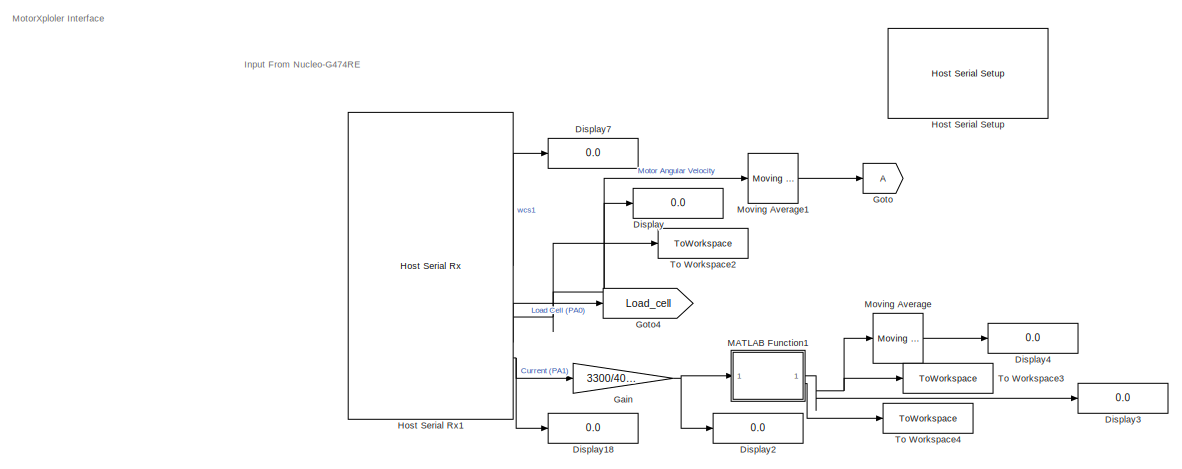
[diagram: root canvas - part 1/3, top left region]
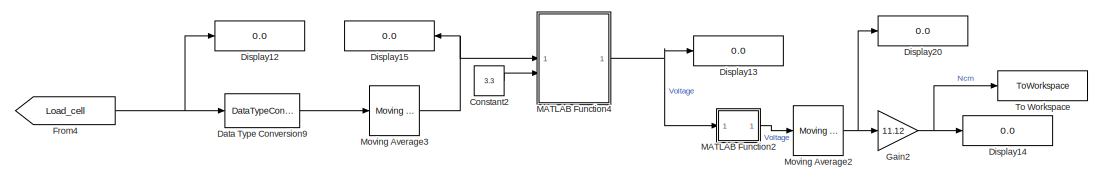
[diagram: root canvas - part 2/3, middle right region]
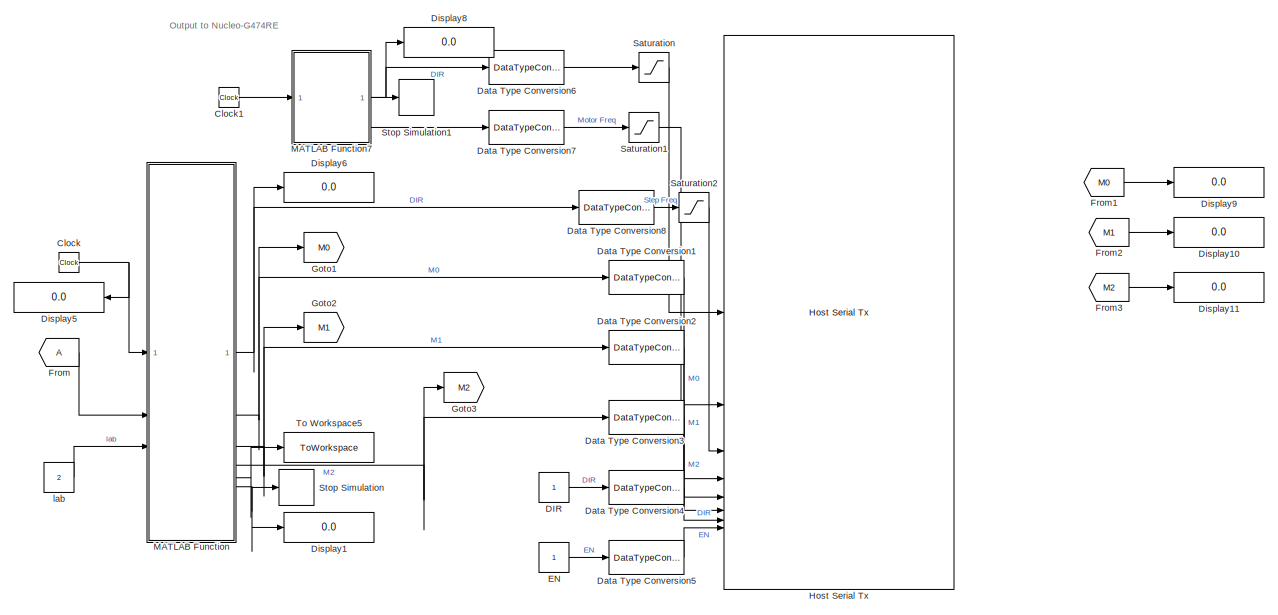
[diagram: root canvas - part 3/3, bottom left region]
MODEL slx_ba54eec96ae3
KIND model
CONFIG AbsTol = auto
CONFIG EnableMultiTasking = off
CONFIG FixedStep = 0.001
CONFIG MaxStep = auto
CONFIG MinStep = auto
CONFIG RelTol = 1e-3
CONFIG SampleTimeConstraint = Unconstrained
CONFIG SolverName = FixedStepAuto
CONFIG StartTime = 0.0
CONFIG StopTime = inf
BLOCK [Clock] Clock
BLOCK [Clock] Clock1
BLOCK [Constant] Constant2
  Value = 3.3
BLOCK [Constant] DIR
BLOCK [DataTypeConversion] Data Type Conversion1
  RndMeth = Floor
  SaturateOnIntegerOverflow = off
BLOCK [DataTypeConversion] Data Type Conversion2
  RndMeth = Floor
  SaturateOnIntegerOverflow = off
BLOCK [DataTypeConversion] Data Type Conversion3
  RndMeth = Floor
  SaturateOnIntegerOverflow = off
BLOCK [DataTypeConversion] Data Type Conversion4
  RndMeth = Floor
  SaturateOnIntegerOverflow = off
BLOCK [DataTypeConversion] Data Type Conversion5
  RndMeth = Floor
  SaturateOnIntegerOverflow = off
BLOCK [DataTypeConversion] Data Type Conversion6
  RndMeth = Floor
  SaturateOnIntegerOverflow = off
BLOCK [DataTypeConversion] Data Type Conversion7
  RndMeth = Floor
  SaturateOnIntegerOverflow = off
BLOCK [DataTypeConversion] Data Type Conversion8
  RndMeth = Floor
  SaturateOnIntegerOverflow = off
BLOCK [DataTypeConversion] Data Type Conversion9
  OutDataTypeStr = double
  RndMeth = Floor
  SaturateOnIntegerOverflow = off
BLOCK [Display] Display
  Decimation = 1
BLOCK [Display] Display1
  Decimation = 1
  Format = long
BLOCK [Display] Display10
  Decimation = 1
BLOCK [Display] Display11
  Decimation = 1
BLOCK [Display] Display12
  Decimation = 1
BLOCK [Display] Display13
  Decimation = 1
BLOCK [Display] Display14
  Decimation = 1
BLOCK [Display] Display15
  Decimation = 1
  NameLocation = top
BLOCK [Display] Display18
  Decimation = 1
BLOCK [Display] Display2
  Decimation = 1
BLOCK [Display] Display20
  Decimation = 1
BLOCK [Display] Display3
  Decimation = 1
BLOCK [Display] Display4
  Decimation = 1
BLOCK [Display] Display5
  Decimation = 1
  NameLocation = top
BLOCK [Display] Display6
  Decimation = 1
  Format = long
BLOCK [Display] Display7
  Decimation = 1
BLOCK [Display] Display8
  Decimation = 1
  Format = long
BLOCK [Display] Display9
  Decimation = 1
BLOCK [Constant] EN
BLOCK [From] From
BLOCK [From] From1
  GotoTag = M0
BLOCK [From] From2
  GotoTag = M1
BLOCK [From] From3
  GotoTag = M2
BLOCK [From] From4
  GotoTag = Load_cell
BLOCK [Gain] Gain
  Gain = 3300/4096
BLOCK [Gain] Gain2
  Gain = 11.12
BLOCK [Goto] Goto
BLOCK [Goto] Goto1
  GotoTag = M0
BLOCK [Goto] Goto2
  GotoTag = M1
BLOCK [Goto] Goto3
  GotoTag = M2
BLOCK [Goto] Goto4
  GotoTag = Load_cell
BLOCK [Reference] Host Serial Rx1  REF=amg_usbconverter_n_connect_lib/Host Serial Rx
  SourceBlock = amg_usbconverter_n_connect_lib/Host Serial Rx
  SourceProductName = aMG USB Converter N
  SourceType = amg_usbconverter_n_connect
BLOCK [Reference] Host Serial Setup  REF=amg_usbconverter_n_connect_lib/Host Serial Setup
  SourceBlock = amg_usbconverter_n_connect_lib/Host Serial Setup
  SourceProductName = aMG USB Converter N
  SourceType = amg_usbconverter_n_connect
BLOCK [Reference] Host Serial Tx  REF=amg_usbconverter_n_connect_lib/Host Serial Tx
  SourceBlock = amg_usbconverter_n_connect_lib/Host Serial Tx
  SourceProductName = aMG USB Converter N
  SourceType = amg_usbconverter_n_connect
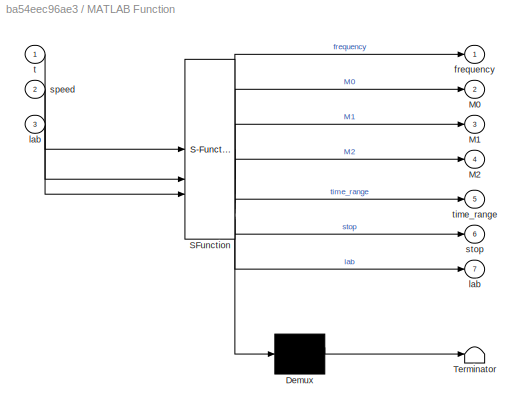
BLOCK [SubSystem] MATLAB Function
  ErrorFcn = Stateflow.Translate.translate
  PermitHierarchicalResolution = ExplicitOnly
  SFBlockType = MATLAB Function
  TreatAsAtomicUnit = on
BLOCK [Demux] MATLAB Function/ Demux 
  Outputs = 1
BLOCK [S-Function] MATLAB Function/ SFunction 
  EnableBusSupport = off
  FunctionName = sf_sfun
  PortCounts = [3 8]
  SFcnIsStateOwnerBlock = off
  SFunctionDeploymentMode = off
  Tag = Stateflow S-Function 2
BLOCK [Terminator] MATLAB Function/ Terminator 
BLOCK [Outport] MATLAB Function/M0
  Port = 2
BLOCK [Outport] MATLAB Function/M1
  Port = 3
BLOCK [Outport] MATLAB Function/M2
  Port = 4
BLOCK [Outport] MATLAB Function/frequency
BLOCK [Outport] MATLAB Function/lab
  Port = 7
BLOCK [Inport] MATLAB Function/lab 
  Port = 3
BLOCK [Inport] MATLAB Function/speed
  Port = 2
BLOCK [Outport] MATLAB Function/stop
  Port = 6
BLOCK [Inport] MATLAB Function/t
BLOCK [Outport] MATLAB Function/time_range
  Port = 5
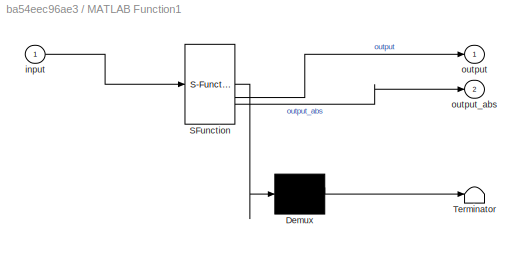
BLOCK [SubSystem] MATLAB Function1
  ErrorFcn = Stateflow.Translate.translate
  PermitHierarchicalResolution = ExplicitOnly
  SFBlockType = MATLAB Function
  TreatAsAtomicUnit = on
BLOCK [Demux] MATLAB Function1/ Demux 
  Outputs = 1
BLOCK [S-Function] MATLAB Function1/ SFunction 
  EnableBusSupport = off
  FunctionName = sf_sfun
  PortCounts = [1 3]
  SFcnIsStateOwnerBlock = off
  SFunctionDeploymentMode = off
  Tag = Stateflow S-Function 1
BLOCK [Terminator] MATLAB Function1/ Terminator 
BLOCK [Inport] MATLAB Function1/input
BLOCK [Outport] MATLAB Function1/output
BLOCK [Outport] MATLAB Function1/output_abs
  Port = 2
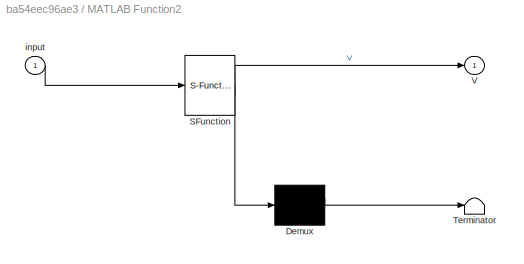
BLOCK [SubSystem] MATLAB Function2
  ErrorFcn = Stateflow.Translate.translate
  PermitHierarchicalResolution = ExplicitOnly
  SFBlockType = MATLAB Function
  TreatAsAtomicUnit = on
BLOCK [Demux] MATLAB Function2/ Demux 
  Outputs = 1
BLOCK [S-Function] MATLAB Function2/ SFunction 
  EnableBusSupport = off
  FunctionName = sf_sfun
  PortCounts = [1 2]
  SFcnIsStateOwnerBlock = off
  SFunctionDeploymentMode = off
  Tag = Stateflow S-Function 3
BLOCK [Terminator] MATLAB Function2/ Terminator 
BLOCK [Outport] MATLAB Function2/V
BLOCK [Inport] MATLAB Function2/input
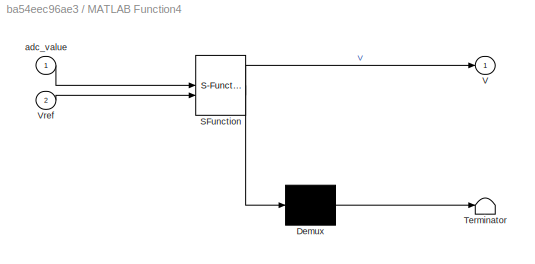
BLOCK [SubSystem] MATLAB Function4
  ErrorFcn = Stateflow.Translate.translate
  PermitHierarchicalResolution = ExplicitOnly
  SFBlockType = MATLAB Function
  TreatAsAtomicUnit = on
BLOCK [Demux] MATLAB Function4/ Demux 
  Outputs = 1
BLOCK [S-Function] MATLAB Function4/ SFunction 
  EnableBusSupport = off
  FunctionName = sf_sfun
  PortCounts = [2 2]
  SFcnIsStateOwnerBlock = off
  SFunctionDeploymentMode = off
  Tag = Stateflow S-Function 5
BLOCK [Terminator] MATLAB Function4/ Terminator 
BLOCK [Outport] MATLAB Function4/V
BLOCK [Inport] MATLAB Function4/Vref
  Port = 2
BLOCK [Inport] MATLAB Function4/adc_value
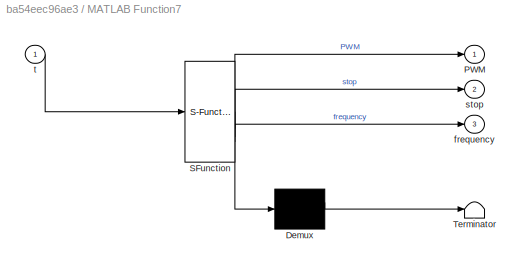
BLOCK [SubSystem] MATLAB Function7
  ErrorFcn = Stateflow.Translate.translate
  PermitHierarchicalResolution = ExplicitOnly
  SFBlockType = MATLAB Function
  TreatAsAtomicUnit = on
BLOCK [Demux] MATLAB Function7/ Demux 
  Outputs = 1
BLOCK [S-Function] MATLAB Function7/ SFunction 
  EnableBusSupport = off
  FunctionName = sf_sfun
  PortCounts = [1 4]
  SFcnIsStateOwnerBlock = off
  SFunctionDeploymentMode = off
  Tag = Stateflow S-Function 8
BLOCK [Terminator] MATLAB Function7/ Terminator 
BLOCK [Outport] MATLAB Function7/PWM
BLOCK [Outport] MATLAB Function7/frequency
  Port = 3
BLOCK [Outport] MATLAB Function7/stop
  Port = 2
BLOCK [Inport] MATLAB Function7/t
BLOCK [Reference] Moving Average  REF=dspstat3/Moving
Average
  SourceBlock = dspstat3/Moving\nAverage
  SourceType = dsp.simulink.MovingAverage
BLOCK [Reference] Moving Average1  REF=dspstat3/Moving
Average
  SourceBlock = dspstat3/Moving\nAverage
  SourceType = dsp.simulink.MovingAverage
BLOCK [Reference] Moving Average2  REF=dspstat3/Moving
Average
  SourceBlock = dspstat3/Moving\nAverage
  SourceType = dsp.simulink.MovingAverage
BLOCK [Reference] Moving Average3  REF=dspstat3/Moving
Average
  SourceBlock = dspstat3/Moving\nAverage
  SourceType = dsp.simulink.MovingAverage
BLOCK [Saturate] Saturation
  LowerLimit = -65535
  UpperLimit = 65535
BLOCK [Saturate] Saturation1
  LowerLimit = 0
  UpperLimit = 20000
BLOCK [Saturate] Saturation2
  LowerLimit = 0
  UpperLimit = inf
BLOCK [Stop] Stop Simulation
  Commented = on
BLOCK [Stop] Stop Simulation1
BLOCK [ToWorkspace] To Workspace
  FixptAsFi = on
  MaxDataPoints = inf
  SampleTime = -1
  SaveFormat = Structure With Time
  VariableName = simout1
BLOCK [ToWorkspace] To Workspace2
  FixptAsFi = on
  MaxDataPoints = inf
  SampleTime = -1
  SaveFormat = Structure With Time
  VariableName = simout2
BLOCK [ToWorkspace] To Workspace3
  FixptAsFi = on
  MaxDataPoints = inf
  SampleTime = -1
  SaveFormat = Structure With Time
  VariableName = simout4
BLOCK [ToWorkspace] To Workspace4
  FixptAsFi = on
  MaxDataPoints = inf
  SampleTime = -1
  SaveFormat = Structure With Time
  VariableName = simout
BLOCK [ToWorkspace] To Workspace5
  FixptAsFi = on
  MaxDataPoints = inf
  SampleTime = -1
  SaveFormat = Structure With Time
  VariableName = simout3
BLOCK [Constant] lab
  Value = 2
ANNOTATION (root): Input From Nucleo-G474RE
ANNOTATION (root): MotorXploler Interface
ANNOTATION (root): Output to Nucleo-G474RE
LINE Clock1:1 -> MATLAB Function7:1
NET Clock:1 -> Display5:1, MATLAB Function:1
LINE Constant2:1 -> MATLAB Function4:2
LINE DIR:1 -> Data Type Conversion4:1
LINE Data Type Conversion1:1 -> Host Serial Tx:4
LINE Data Type Conversion2:1 -> Host Serial Tx:5
LINE Data Type Conversion3:1 -> Host Serial Tx:6
LINE Data Type Conversion4:1 -> Host Serial Tx:7
LINE Data Type Conversion5:1 -> Host Serial Tx:8
LINE Data Type Conversion6:1 -> Saturation:1
LINE Data Type Conversion7:1 -> Saturation1:1
LINE Data Type Conversion8:1 -> Saturation2:1
LINE Data Type Conversion9:1 -> Moving Average3:1
LINE EN:1 -> Data Type Conversion5:1
LINE From1:1 -> Display9:1
LINE From2:1 -> Display10:1
LINE From3:1 -> Display11:1
NET From4:1 -> Data Type Conversion9:1, Display12:1
LINE From:1 -> MATLAB Function:2
NET Gain2:1 -> Display14:1, To Workspace:1
NET Gain:1 -> Display2:1, MATLAB Function1:1
LINE Host Serial Rx1:1 -> Display7:1
NET Host Serial Rx1:2 -> Display:1, Moving Average1:1, To Workspace2:1
LINE Host Serial Rx1:3 -> Goto4:1
NET Host Serial Rx1:4 -> Display18:1, Gain:1
NET MATLAB Function1:1 -> Display3:1, Moving Average:1, To Workspace3:1
LINE MATLAB Function1:2 -> To Workspace4:1
LINE MATLAB Function2:1 -> Moving Average2:1
NET MATLAB Function4:1 -> Display13:1, MATLAB Function2:1
NET MATLAB Function7:1 -> Data Type Conversion6:1, Display8:1
LINE MATLAB Function7:2 -> Stop Simulation1:1
LINE MATLAB Function7:3 -> Data Type Conversion7:1
NET MATLAB Function:1 -> Data Type Conversion8:1, Display6:1
NET MATLAB Function:2 -> Data Type Conversion1:1, Goto1:1
NET MATLAB Function:3 -> Data Type Conversion2:1, Goto2:1
NET MATLAB Function:4 -> Data Type Conversion3:1, Goto3:1
LINE MATLAB Function:5 -> To Workspace5:1
NET MATLAB Function:6 -> Display1:1, Stop Simulation:1
LINE Moving Average1:1 -> Goto:1
NET Moving Average2:1 -> Display20:1, Gain2:1
NET Moving Average3:1 -> Display15:1, MATLAB Function4:1
LINE Moving Average:1 -> Display4:1
LINE Saturation1:1 -> Host Serial Tx:2
LINE Saturation2:1 -> Host Serial Tx:3
LINE Saturation:1 -> Host Serial Tx:1
LINE lab:1 -> MATLAB Function:3
note: NET lines group one-source signal fan-out (src -> all destinations, sorted); 1:1 wires keep LINE
CHART MATLAB Function1 states=1 transitions=1
  STATE_LABEL 'eML_blk_kernel()'
  STATE_LABEL 'SCRIPT:\nfunction [output,output_abs] = fcn(input)\n\noutput = (input - 2890)/27;\noutput_abs = abs(input - 1704)/27;\n'
CHART MATLAB Function states=1 transitions=1
  STATE_LABEL 'eML_blk_kernel()'
  STATE_LABEL 'SCRIPT:\nfunction [frequency, M0, M1, M2, time_range, stop, lab] = fcn(t, speed, lab)\n%#codegen\n\npersistent cycleStartTime\ndetectDelay = 40;        % detect 0-speed AFTER this time (case 1)\nfrequency_stop = 6000;   % target stop frequency for case 2\n\n% Initialize\nif isempty(cycleStartTime)\n    cycleStartTime = 0;\nend\n\n% Defaults\nM0 = 0; M1 = 0; M2 = 0;\nfrequency = 0;\nstop = 0;\n\ndt = t - cycleStartT...<+1393ch>'
CHART MATLAB Function2 states=1 transitions=1
  STATE_LABEL 'eML_blk_kernel()'
  STATE_LABEL 'SCRIPT:\nfunction V = kg(input)\n    V = (input-1.37)*1289.74;\nend\n'
CHART MATLAB Function4 states=1 transitions=1
  STATE_LABEL 'eML_blk_kernel()'
  STATE_LABEL "SCRIPT:\nfunction V = adc2voltage(adc_value, Vref)\n    % ตรวจสอบขอบเขตค่าของ ADC\n    if any(adc_value < 0 | adc_value > 4095)\n        error('adc_value range 0 - 4095');\n    end\n\n    % คำนวณแรงดัน\n    V = (adc_value / 4095) * Vref;\nend\n"
CHART MATLAB Function7 states=1 transitions=1
  STATE_LABEL 'eML_blk_kernel()'
  STATE_LABEL 'SCRIPT:\nfunction [PWM, stop, frequency] = fcn(t)\n%#codegen\n\nfrequency = 50;      % constant frequency\nstop = 0;            % default value\n\n% PWM ramp from 0 → 65536 as time goes 0 → 100\nPWM = (floor(t)/100 *5*65536);\n% PWM = 0;\n\n% When t reaches exactly 100 → stop\nif PWM >= 65536\n    stop = 1;\n    PWM = 0;     % optional: clamp PWM to max\nend\n\nend\n\n\n'
CHART  states=0 transitions=0
CHART  states=0 transitions=0
CHART  states=0 transitions=0
CHART  states=0 transitions=0
CHART  states=0 transitions=0
